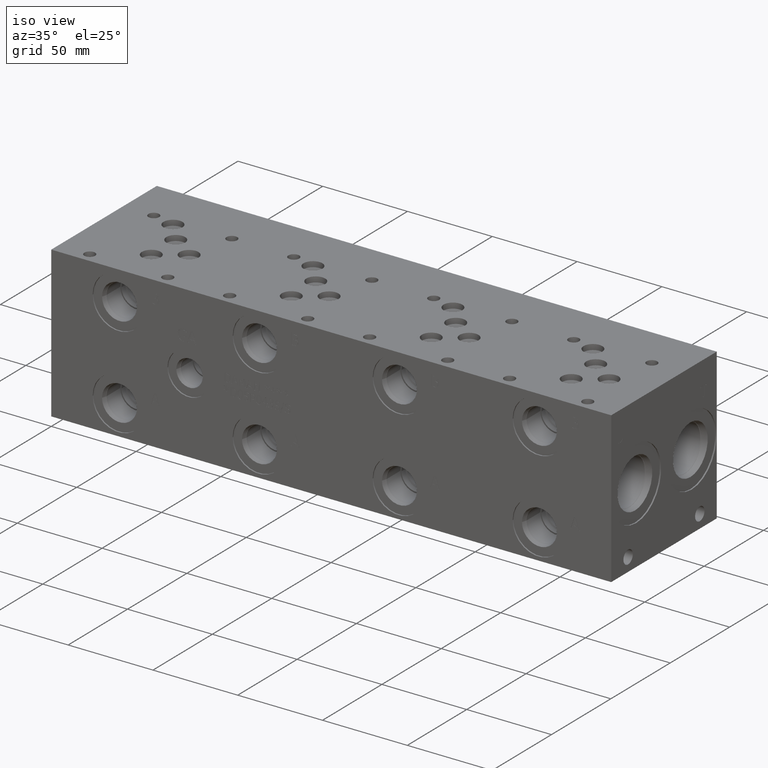
[diagram: clean part render]
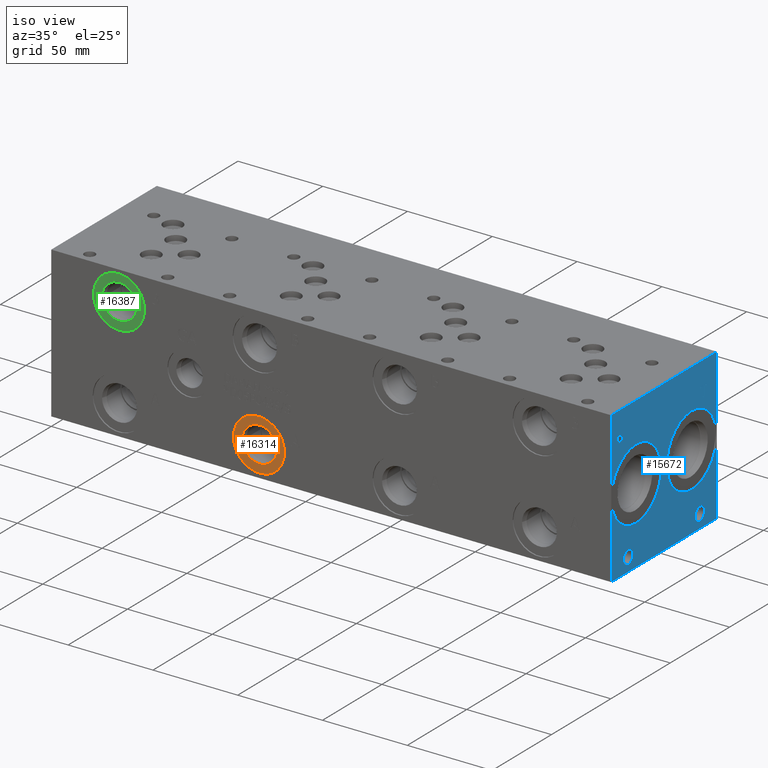
[diagram: same view with three faces highlighted in distinct colors, each labeled with its STEP entity id]
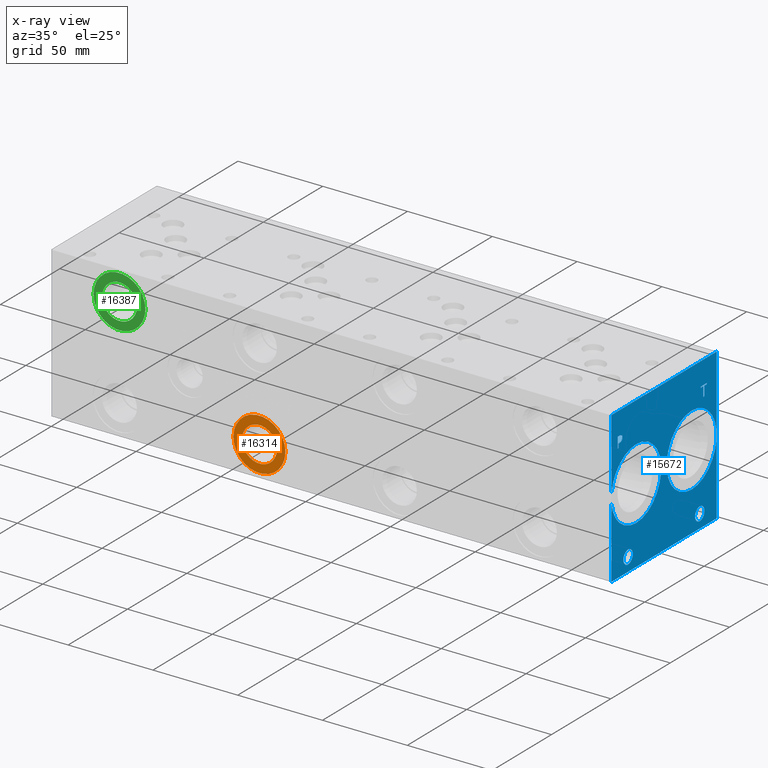
[diagram: x-ray of the same camera — body ghosted, the three highlighted faces saturated]
A machine part, iso view with three faces highlighted in distinct colors.
The next image is the same camera in x-ray (body ghosted, the three faces saturated) — at least one of them is partly hidden behind the body in this view.
Their STEP definitions:

[orange] entity #16314 — the highlighted planar face has unit normal (0, 1, 0).
#400=CIRCLE('',#17156,15.3162);
#401=CIRCLE('',#17157,15.3162);
#402=CIRCLE('',#17159,10.2997);
#403=CIRCLE('',#17160,10.2997);
#802=FACE_BOUND('',#3079,.T.);
#2129=FACE_OUTER_BOUND('',#3078,.T.);
#3078=EDGE_LOOP('',(#13672,#13673));
#3079=EDGE_LOOP('',(#13674,#13675));
#7410=VERTEX_POINT('',#27666);
#7411=VERTEX_POINT('',#27668);
#7412=VERTEX_POINT('',#27672);
#7413=VERTEX_POINT('',#27673);
#9590=EDGE_CURVE('',#7410,#7411,#400,.T.);
#9591=EDGE_CURVE('',#7411,#7410,#401,.T.);
#9592=EDGE_CURVE('',#7412,#7413,#402,.T.);
#9593=EDGE_CURVE('',#7413,#7412,#403,.T.);
#13672=ORIENTED_EDGE('',*,*,#9591,.F.);
#13673=ORIENTED_EDGE('',*,*,#9590,.F.);
#13674=ORIENTED_EDGE('',*,*,#9592,.T.);
#13675=ORIENTED_EDGE('',*,*,#9593,.T.);
#15045=PLANE('',#17158);
#16314=ADVANCED_FACE('',(#2129,#802),#15045,.F.);
#17156=AXIS2_PLACEMENT_3D('',#27669,#20199,#20200);
#17157=AXIS2_PLACEMENT_3D('',#27670,#20201,#20202);
#17158=AXIS2_PLACEMENT_3D('',#27671,#20203,#20204);
#17159=AXIS2_PLACEMENT_3D('',#27674,#20205,#20206);
#17160=AXIS2_PLACEMENT_3D('',#27675,#20207,#20208);
#20199=DIRECTION('center_axis',(0.,1.,0.));
#20200=DIRECTION('ref_axis',(1.,0.,0.));
#20201=DIRECTION('center_axis',(0.,1.,0.));
#20202=DIRECTION('ref_axis',(1.,0.,0.));
#20203=DIRECTION('center_axis',(0.,1.,0.));
#20204=DIRECTION('ref_axis',(0.,0.,1.));
#20205=DIRECTION('center_axis',(0.,1.,0.));
#20206=DIRECTION('ref_axis',(1.,0.,0.));
#20207=DIRECTION('center_axis',(0.,1.,0.));
#20208=DIRECTION('ref_axis',(1.,0.,0.));
#27666=CARTESIAN_POINT('',(106.9086,0.7874,17.4752));
#27668=CARTESIAN_POINT('',(137.541,0.7874,17.4752));
#27669=CARTESIAN_POINT('Origin',(122.2248,0.7874,17.4752));
#27670=CARTESIAN_POINT('Origin',(122.2248,0.7874,17.4752));
#27671=CARTESIAN_POINT('Origin',(132.5245,0.7874,17.4752));
#27672=CARTESIAN_POINT('',(132.5245,0.7874,17.4752));
#27673=CARTESIAN_POINT('',(111.9251,0.787399999999997,17.4752));
#27674=CARTESIAN_POINT('Origin',(122.2248,0.7874,17.4752));
#27675=CARTESIAN_POINT('Origin',(122.2248,0.7874,17.4752));

[blue] entity #15672 — the highlighted planar face has unit normal (1, 0, 0).
#232=CIRCLE('',#16537,3.9624);
#233=CIRCLE('',#16538,3.9624);
#234=CIRCLE('',#16539,3.9624);
#235=CIRCLE('',#16540,3.9624);
#236=CIRCLE('',#16541,21.0185);
#237=CIRCLE('',#16542,21.0185);
#238=CIRCLE('',#16543,21.0185);
#239=CIRCLE('',#16544,21.0185);
#712=FACE_BOUND('',#2347,.T.);
#713=FACE_BOUND('',#2348,.T.);
#714=FACE_BOUND('',#2349,.T.);
#715=FACE_BOUND('',#2350,.T.);
#716=FACE_BOUND('',#2351,.T.);
#717=FACE_BOUND('',#2352,.T.);
#875=B_SPLINE_CURVE_WITH_KNOTS('',2,(#21509,#21510,#21511,#21512),
 .UNSPECIFIED.,.F.,.F.,(3,1,3),(0.,1.,2.),.UNSPECIFIED.);
#877=B_SPLINE_CURVE_WITH_KNOTS('',2,(#21530,#21531,#21532,#21533),
 .UNSPECIFIED.,.F.,.F.,(3,1,3),(0.,1.,2.),.UNSPECIFIED.);
#879=B_SPLINE_CURVE_WITH_KNOTS('',2,(#21579,#21580,#21581,#21582),
 .UNSPECIFIED.,.F.,.F.,(3,1,3),(0.,1.,2.),.UNSPECIFIED.);
#881=B_SPLINE_CURVE_WITH_KNOTS('',2,(#21597,#21598,#21599,#21600),
 .UNSPECIFIED.,.F.,.F.,(3,1,3),(0.,1.,2.),.UNSPECIFIED.);
#1487=FACE_OUTER_BOUND('',#2346,.T.);
#2346=EDGE_LOOP('',(#10175,#10176,#10177,#10178));
#2347=EDGE_LOOP('',(#10179,#10180,#10181,#10182,#10183,#10184,#10185,#10186));
#2348=EDGE_LOOP('',(#10187,#10188));
#2349=EDGE_LOOP('',(#10189,#10190));
#2350=EDGE_LOOP('',(#10191,#10192));
#2351=EDGE_LOOP('',(#10193,#10194));
#2352=EDGE_LOOP('',(#10195,#10196,#10197,#10198,#10199,#10200,#10201,#10202,
#10203));
#3333=LINE('',#21359,#4751);
#3337=LINE('',#21367,#4755);
#3340=LINE('',#21373,#4758);
#3343=LINE('',#21379,#4761);
#3346=LINE('',#21385,#4764);
#3349=LINE('',#21391,#4767);
#3352=LINE('',#21397,#4770);
#3355=LINE('',#21402,#4773);
#3373=LINE('',#21542,#4791);
#3376=LINE('',#21548,#4794);
#3379=LINE('',#21554,#4797);
#3382=LINE('',#21560,#4800);
#3385=LINE('',#21566,#4803);
#3389=LINE('',#21609,#4807);
#3390=LINE('',#21611,#4808);
#3391=LINE('',#21613,#4809);
#3392=LINE('',#21614,#4810);
#4751=VECTOR('',#17661,10.);
#4755=VECTOR('',#17667,10.);
#4758=VECTOR('',#17672,10.);
#4761=VECTOR('',#17677,10.);
#4764=VECTOR('',#17682,10.);
#4767=VECTOR('',#17687,10.);
#4770=VECTOR('',#17692,10.);
#4773=VECTOR('',#17697,10.);
#4791=VECTOR('',#17725,10.);
#4794=VECTOR('',#17730,10.);
#4797=VECTOR('',#17735,10.);
#4800=VECTOR('',#17740,10.);
#4803=VECTOR('',#17745,10.);
#4807=VECTOR('',#17753,10.);
#4808=VECTOR('',#17754,10.);
#4809=VECTOR('',#17755,10.);
#4810=VECTOR('',#17756,10.);
#6169=VERTEX_POINT('',#21357);
#6170=VERTEX_POINT('',#21358);
#6173=VERTEX_POINT('',#21366);
#6175=VERTEX_POINT('',#21372);
#6177=VERTEX_POINT('',#21378);
#6179=VERTEX_POINT('',#21384);
#6181=VERTEX_POINT('',#21390);
#6183=VERTEX_POINT('',#21396);
#6199=VERTEX_POINT('',#21507);
#6200=VERTEX_POINT('',#21508);
#6203=VERTEX_POINT('',#21529);
#6205=VERTEX_POINT('',#21541);
#6207=VERTEX_POINT('',#21547);
#6209=VERTEX_POINT('',#21553);
#6211=VERTEX_POINT('',#21559);
#6213=VERTEX_POINT('',#21565);
#6215=VERTEX_POINT('',#21578);
#6217=VERTEX_POINT('',#21607);
#6218=VERTEX_POINT('',#21608);
#6219=VERTEX_POINT('',#21610);
#6220=VERTEX_POINT('',#21612);
#6221=VERTEX_POINT('',#21615);
#6222=VERTEX_POINT('',#21616);
#6223=VERTEX_POINT('',#21619);
#6224=VERTEX_POINT('',#21620);
#6225=VERTEX_POINT('',#21623);
#6226=VERTEX_POINT('',#21624);
#6227=VERTEX_POINT('',#21627);
#6228=VERTEX_POINT('',#21628);
#7762=EDGE_CURVE('',#6169,#6170,#3333,.T.);
#7766=EDGE_CURVE('',#6173,#6169,#3337,.T.);
#7769=EDGE_CURVE('',#6175,#6173,#3340,.T.);
#7772=EDGE_CURVE('',#6177,#6175,#3343,.T.);
#7775=EDGE_CURVE('',#6179,#6177,#3346,.T.);
#7778=EDGE_CURVE('',#6181,#6179,#3349,.T.);
#7781=EDGE_CURVE('',#6183,#6181,#3352,.T.);
#7784=EDGE_CURVE('',#6170,#6183,#3355,.T.);
#7807=EDGE_CURVE('',#6199,#6200,#875,.T.);
#7811=EDGE_CURVE('',#6203,#6199,#877,.T.);
#7814=EDGE_CURVE('',#6205,#6203,#3373,.T.);
#7817=EDGE_CURVE('',#6207,#6205,#3376,.T.);
#7820=EDGE_CURVE('',#6209,#6207,#3379,.T.);
#7823=EDGE_CURVE('',#6211,#6209,#3382,.T.);
#7826=EDGE_CURVE('',#6213,#6211,#3385,.T.);
#7829=EDGE_CURVE('',#6215,#6213,#879,.T.);
#7832=EDGE_CURVE('',#6200,#6215,#881,.T.);
#7834=EDGE_CURVE('',#6217,#6218,#3389,.T.);
#7835=EDGE_CURVE('',#6218,#6219,#3390,.T.);
#7836=EDGE_CURVE('',#6220,#6219,#3391,.T.);
#7837=EDGE_CURVE('',#6217,#6220,#3392,.T.);
#7838=EDGE_CURVE('',#6221,#6222,#232,.T.);
#7839=EDGE_CURVE('',#6222,#6221,#233,.T.);
#7840=EDGE_CURVE('',#6223,#6224,#234,.T.);
#7841=EDGE_CURVE('',#6224,#6223,#235,.T.);
#7842=EDGE_CURVE('',#6225,#6226,#236,.T.);
#7843=EDGE_CURVE('',#6226,#6225,#237,.T.);
#7844=EDGE_CURVE('',#6227,#6228,#238,.T.);
#7845=EDGE_CURVE('',#6228,#6227,#239,.T.);
#10175=ORIENTED_EDGE('',*,*,#7834,.T.);
#10176=ORIENTED_EDGE('',*,*,#7835,.T.);
#10177=ORIENTED_EDGE('',*,*,#7836,.F.);
#10178=ORIENTED_EDGE('',*,*,#7837,.F.);
#10179=ORIENTED_EDGE('',*,*,#7762,.T.);
#10180=ORIENTED_EDGE('',*,*,#7784,.T.);
#10181=ORIENTED_EDGE('',*,*,#7781,.T.);
#10182=ORIENTED_EDGE('',*,*,#7778,.T.);
#10183=ORIENTED_EDGE('',*,*,#7775,.T.);
#10184=ORIENTED_EDGE('',*,*,#7772,.T.);
#10185=ORIENTED_EDGE('',*,*,#7769,.T.);
#10186=ORIENTED_EDGE('',*,*,#7766,.T.);
#10187=ORIENTED_EDGE('',*,*,#7838,.T.);
#10188=ORIENTED_EDGE('',*,*,#7839,.T.);
#10189=ORIENTED_EDGE('',*,*,#7840,.T.);
#10190=ORIENTED_EDGE('',*,*,#7841,.T.);
#10191=ORIENTED_EDGE('',*,*,#7842,.T.);
#10192=ORIENTED_EDGE('',*,*,#7843,.T.);
#10193=ORIENTED_EDGE('',*,*,#7844,.T.);
#10194=ORIENTED_EDGE('',*,*,#7845,.T.);
#10195=ORIENTED_EDGE('',*,*,#7807,.T.);
#10196=ORIENTED_EDGE('',*,*,#7832,.T.);
#10197=ORIENTED_EDGE('',*,*,#7829,.T.);
#10198=ORIENTED_EDGE('',*,*,#7826,.T.);
#10199=ORIENTED_EDGE('',*,*,#7823,.T.);
#10200=ORIENTED_EDGE('',*,*,#7820,.T.);
#10201=ORIENTED_EDGE('',*,*,#7817,.T.);
#10202=ORIENTED_EDGE('',*,*,#7814,.T.);
#10203=ORIENTED_EDGE('',*,*,#7811,.T.);
#14659=PLANE('',#16536);
#15672=ADVANCED_FACE('',(#1487,#712,#713,#714,#715,#716,#717),#14659,.T.);
#16536=AXIS2_PLACEMENT_3D('',#21606,#17751,#17752);
#16537=AXIS2_PLACEMENT_3D('',#21617,#17757,#17758);
#16538=AXIS2_PLACEMENT_3D('',#21618,#17759,#17760);
#16539=AXIS2_PLACEMENT_3D('',#21621,#17761,#17762);
#16540=AXIS2_PLACEMENT_3D('',#21622,#17763,#17764);
#16541=AXIS2_PLACEMENT_3D('',#21625,#17765,#17766);
#16542=AXIS2_PLACEMENT_3D('',#21626,#17767,#17768);
#16543=AXIS2_PLACEMENT_3D('',#21629,#17769,#17770);
#16544=AXIS2_PLACEMENT_3D('',#21630,#17771,#17772);
#17661=DIRECTION('',(0.,-1.,0.));
#17667=DIRECTION('',(0.,0.,-1.));
#17672=DIRECTION('',(0.,-1.,0.));
#17677=DIRECTION('',(0.,0.,-1.));
#17682=DIRECTION('',(0.,1.,0.));
#17687=DIRECTION('',(0.,0.,1.));
#17692=DIRECTION('',(0.,-1.,0.));
#17697=DIRECTION('',(0.,0.,1.));
#17725=DIRECTION('',(0.,1.,0.));
#17730=DIRECTION('',(0.,0.,1.));
#17735=DIRECTION('',(0.,-1.,0.));
#17740=DIRECTION('',(0.,0.,-1.));
#17745=DIRECTION('',(0.,-1.,0.));
#17751=DIRECTION('center_axis',(1.,0.,0.));
#17752=DIRECTION('ref_axis',(0.,1.,0.));
#17753=DIRECTION('',(0.,1.,0.));
#17754=DIRECTION('',(0.,0.,1.));
#17755=DIRECTION('',(0.,1.,0.));
#17756=DIRECTION('',(0.,0.,1.));
#17757=DIRECTION('center_axis',(-1.,0.,0.));
#17758=DIRECTION('ref_axis',(0.,1.,0.));
#17759=DIRECTION('center_axis',(-1.,0.,0.));
#17760=DIRECTION('ref_axis',(0.,1.,0.));
#17761=DIRECTION('center_axis',(-1.,0.,0.));
#17762=DIRECTION('ref_axis',(0.,1.,0.));
#17763=DIRECTION('center_axis',(-1.,0.,0.));
#17764=DIRECTION('ref_axis',(0.,1.,0.));
#17765=DIRECTION('center_axis',(-1.,0.,0.));
#17766=DIRECTION('ref_axis',(0.,0.,-1.));
#17767=DIRECTION('center_axis',(-1.,0.,0.));
#17768=DIRECTION('ref_axis',(0.,0.,-1.));
#17769=DIRECTION('center_axis',(-1.,0.,0.));
#17770=DIRECTION('ref_axis',(0.,0.,-1.));
#17771=DIRECTION('center_axis',(-1.,0.,0.));
#17772=DIRECTION('ref_axis',(0.,0.,-1.));
#21357=CARTESIAN_POINT('',(330.2,78.375415271453,69.05625));
#21358=CARTESIAN_POINT('',(330.2,77.5314930799135,69.05625));
#21359=CARTESIAN_POINT('',(330.2,39.1877076357265,69.05625));
#21366=CARTESIAN_POINT('',(330.2,78.375415271453,74.6549533194816));
#21367=CARTESIAN_POINT('',(330.2,78.375415271453,37.3274766597408));
#21372=CARTESIAN_POINT('',(330.2,80.5058042183881,74.6549533194816));
#21373=CARTESIAN_POINT('',(330.2,40.252902109194,74.6549533194816));
#21378=CARTESIAN_POINT('',(330.2,80.5058042183881,75.4062499046326));
#21379=CARTESIAN_POINT('',(330.2,80.5058042183881,37.7031249523163));
#21384=CARTESIAN_POINT('',(330.2,75.4011041329784,75.4062499046326));
#21385=CARTESIAN_POINT('',(330.2,37.7005520664892,75.4062499046326));
#21390=CARTESIAN_POINT('',(330.2,75.4011041329784,74.6549533194816));
#21391=CARTESIAN_POINT('',(330.2,75.4011041329784,37.3274766597408));
#21396=CARTESIAN_POINT('',(330.2,77.5314930799135,74.6549533194816));
#21397=CARTESIAN_POINT('',(330.2,38.7657465399567,74.6549533194816));
#21402=CARTESIAN_POINT('',(330.2,77.5314930799135,34.528125));
#21507=CARTESIAN_POINT('',(330.2,8.72656720235939,75.0417681439707));
#21508=CARTESIAN_POINT('',(330.2,9.48300965453199,73.5237373726039));
#21509=CARTESIAN_POINT('Ctrl Pts',(330.2,8.72656720235939,75.0417681439707));
#21510=CARTESIAN_POINT('Ctrl Pts',(330.2,9.08163202684857,74.7999123939564));
#21511=CARTESIAN_POINT('Ctrl Pts',(330.2,9.48300965453199,74.0537616758269));
#21512=CARTESIAN_POINT('Ctrl Pts',(330.2,9.48300965453199,73.5237373726039));
#21529=CARTESIAN_POINT('',(330.2,7.0644521543883,75.4379999046326));
#21530=CARTESIAN_POINT('Ctrl Pts',(330.2,7.0644521543883,75.4379999046326));
#21531=CARTESIAN_POINT('Ctrl Pts',(330.2,7.63049752676236,75.4379999046326));
#21532=CARTESIAN_POINT('Ctrl Pts',(330.2,8.42296104808603,75.2527486918556));
#21533=CARTESIAN_POINT('Ctrl Pts',(330.2,8.72656720235939,75.0417681439707));
#21541=CARTESIAN_POINT('',(330.2,5.46923337769779,75.4379999046326));
#21542=CARTESIAN_POINT('',(330.2,2.73461668884889,75.4379999046326));
#21547=CARTESIAN_POINT('',(330.2,5.46923337769779,69.088));
#21548=CARTESIAN_POINT('',(330.2,5.46923337769779,34.544));
#21553=CARTESIAN_POINT('',(330.2,6.31315556923729,69.088));
#21554=CARTESIAN_POINT('',(330.2,3.15657778461864,69.088));
#21559=CARTESIAN_POINT('',(330.2,6.31315556923729,71.4550988299278));
#21560=CARTESIAN_POINT('',(330.2,6.31315556923729,35.7275494149639));
#21565=CARTESIAN_POINT('',(330.2,7.02843108523723,71.4550988299278));
#21566=CARTESIAN_POINT('',(330.2,3.51421554261861,71.4550988299278));
#21578=CARTESIAN_POINT('',(330.2,8.9272560162011,72.1137698086904));
#21579=CARTESIAN_POINT('Ctrl Pts',(330.2,8.9272560162011,72.1137698086904));
#21580=CARTESIAN_POINT('Ctrl Pts',(330.2,8.59792052681983,71.7895801863307));
#21581=CARTESIAN_POINT('Ctrl Pts',(330.2,7.70768553208609,71.4550988299278));
#21582=CARTESIAN_POINT('Ctrl Pts',(330.2,7.02843108523723,71.4550988299278));
#21597=CARTESIAN_POINT('Ctrl Pts',(330.2,9.48300965453199,73.5237373726039));
#21598=CARTESIAN_POINT('Ctrl Pts',(330.2,9.48300965453199,73.1120680108774));
#21599=CARTESIAN_POINT('Ctrl Pts',(330.2,9.1896952343018,72.3710631597695));
#21600=CARTESIAN_POINT('Ctrl Pts',(330.2,8.9272560162011,72.1137698086904));
#21606=CARTESIAN_POINT('Origin',(330.2,0.,0.));
#21607=CARTESIAN_POINT('',(330.2,0.,0.));
#21608=CARTESIAN_POINT('',(330.2,88.9,0.));
#21609=CARTESIAN_POINT('',(330.2,0.,0.));
#21610=CARTESIAN_POINT('',(330.2,88.9,88.9));
#21611=CARTESIAN_POINT('',(330.2,88.9,0.));
#21612=CARTESIAN_POINT('',(330.2,0.,88.9));
#21613=CARTESIAN_POINT('',(330.2,0.,88.9));
#21614=CARTESIAN_POINT('',(330.2,0.,0.));
#21615=CARTESIAN_POINT('',(330.2,78.5876,7.9248));
#21616=CARTESIAN_POINT('',(330.2,70.6628,7.9248));
#21617=CARTESIAN_POINT('Origin',(330.2,74.6252,7.9248));
#21618=CARTESIAN_POINT('Origin',(330.2,74.6252,7.9248));
#21619=CARTESIAN_POINT('',(330.2,18.2372,7.9248));
#21620=CARTESIAN_POINT('',(330.2,10.3124,7.9248));
#21621=CARTESIAN_POINT('Origin',(330.2,14.2748,7.9248));
#21622=CARTESIAN_POINT('Origin',(330.2,14.2748,7.9248));
#21623=CARTESIAN_POINT('',(330.2,21.082,23.4315));
#21624=CARTESIAN_POINT('',(330.2,21.082,65.4685));
#21625=CARTESIAN_POINT('Origin',(330.2,21.082,44.45));
#21626=CARTESIAN_POINT('Origin',(330.2,21.082,44.45));
#21627=CARTESIAN_POINT('',(330.2,67.818,23.4315));
#21628=CARTESIAN_POINT('',(330.2,67.818,65.4685));
#21629=CARTESIAN_POINT('Origin',(330.2,67.818,44.45));
#21630=CARTESIAN_POINT('Origin',(330.2,67.818,44.45));

[green] entity #16387 — the highlighted planar face has unit normal (0, 1, 0).
#510=CIRCLE('',#17339,15.3162);
#511=CIRCLE('',#17340,15.3162);
#512=CIRCLE('',#17342,10.2997);
#513=CIRCLE('',#17343,10.2997);
#815=FACE_BOUND('',#3165,.T.);
#2202=FACE_OUTER_BOUND('',#3164,.T.);
#3164=EDGE_LOOP('',(#14023,#14024));
#3165=EDGE_LOOP('',(#14025,#14026));
#7528=VERTEX_POINT('',#28027);
#7529=VERTEX_POINT('',#28029);
#7530=VERTEX_POINT('',#28033);
#7531=VERTEX_POINT('',#28034);
#9760=EDGE_CURVE('',#7528,#7529,#510,.T.);
#9761=EDGE_CURVE('',#7529,#7528,#511,.T.);
#9762=EDGE_CURVE('',#7530,#7531,#512,.T.);
#9763=EDGE_CURVE('',#7531,#7530,#513,.T.);
#14023=ORIENTED_EDGE('',*,*,#9761,.F.);
#14024=ORIENTED_EDGE('',*,*,#9760,.F.);
#14025=ORIENTED_EDGE('',*,*,#9762,.T.);
#14026=ORIENTED_EDGE('',*,*,#9763,.T.);
#15058=PLANE('',#17341);
#16387=ADVANCED_FACE('',(#2202,#815),#15058,.F.);
#17339=AXIS2_PLACEMENT_3D('',#28030,#20625,#20626);
#17340=AXIS2_PLACEMENT_3D('',#28031,#20627,#20628);
#17341=AXIS2_PLACEMENT_3D('',#28032,#20629,#20630);
#17342=AXIS2_PLACEMENT_3D('',#28035,#20631,#20632);
#17343=AXIS2_PLACEMENT_3D('',#28036,#20633,#20634);
#20625=DIRECTION('center_axis',(0.,1.,0.));
#20626=DIRECTION('ref_axis',(1.,0.,0.));
#20627=DIRECTION('center_axis',(0.,1.,0.));
#20628=DIRECTION('ref_axis',(1.,0.,0.));
#20629=DIRECTION('center_axis',(0.,1.,0.));
#20630=DIRECTION('ref_axis',(0.,0.,1.));
#20631=DIRECTION('center_axis',(0.,1.,0.));
#20632=DIRECTION('ref_axis',(1.,0.,0.));
#20633=DIRECTION('center_axis',(0.,1.,0.));
#20634=DIRECTION('ref_axis',(1.,0.,0.));
#28027=CARTESIAN_POINT('',(24.3586,0.7874,71.4248));
#28029=CARTESIAN_POINT('',(54.991,0.7874,71.4248));
#28030=CARTESIAN_POINT('Origin',(39.6748,0.7874,71.4248));
#28031=CARTESIAN_POINT('Origin',(39.6748,0.7874,71.4248));
#28032=CARTESIAN_POINT('Origin',(49.9745,0.7874,71.4248));
#28033=CARTESIAN_POINT('',(49.9745,0.7874,71.4248));
#28034=CARTESIAN_POINT('',(29.3751,0.787400000000001,71.4248));
#28035=CARTESIAN_POINT('Origin',(39.6748,0.7874,71.4248));
#28036=CARTESIAN_POINT('Origin',(39.6748,0.7874,71.4248));